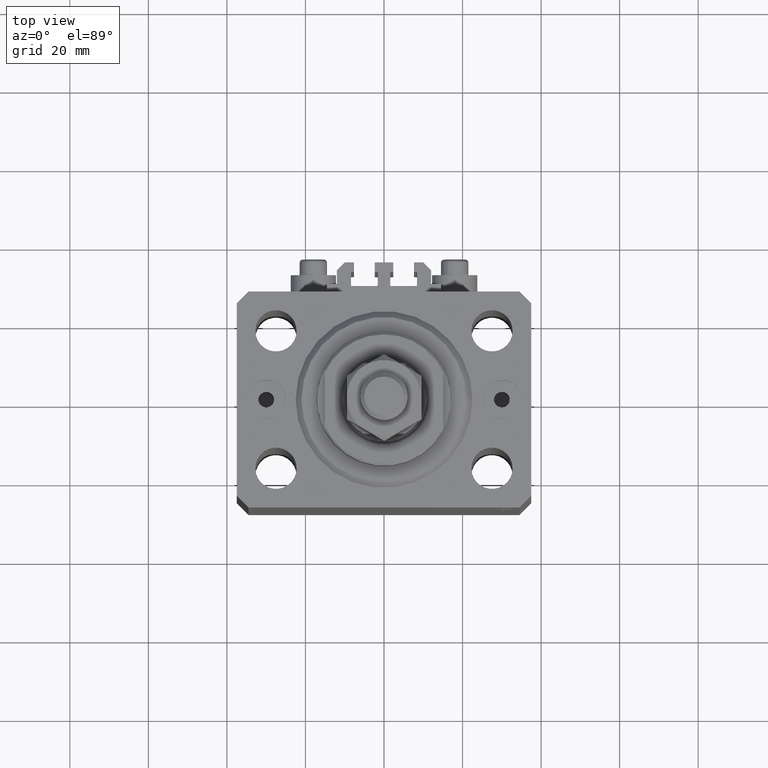
[diagram: clean part render]
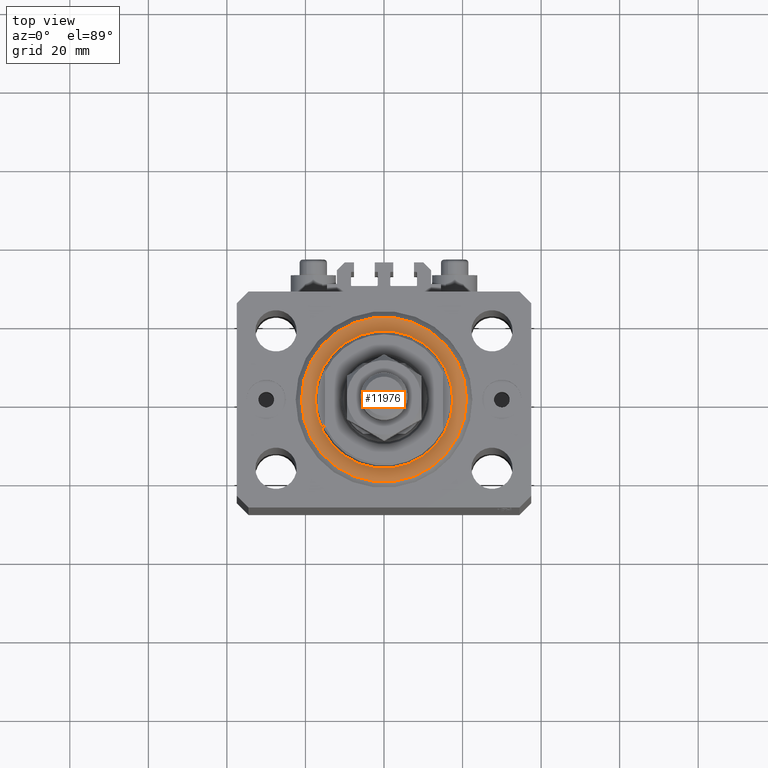
[diagram: same view with one face highlighted and labeled with its STEP entity id]
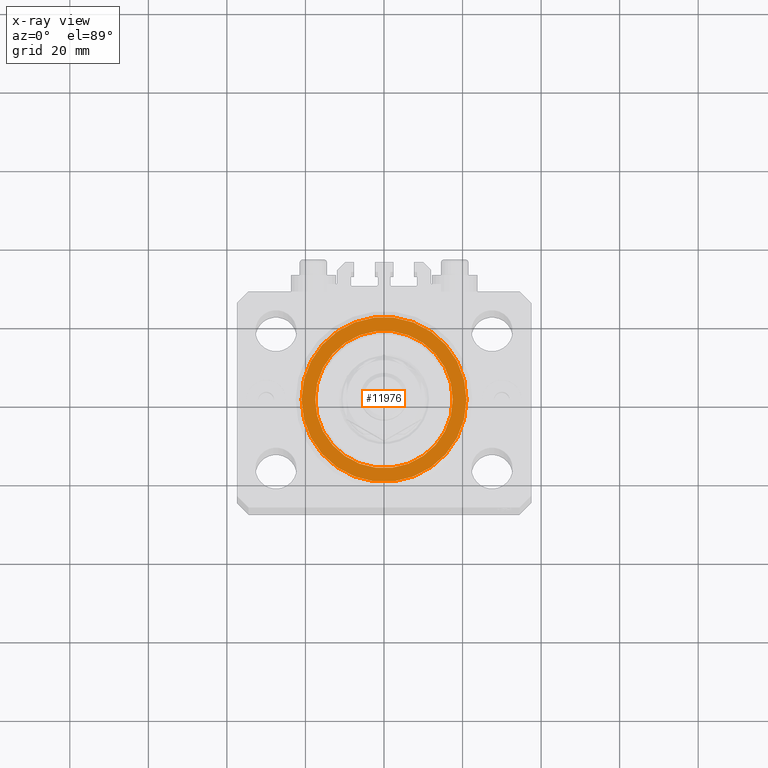
[diagram: x-ray of the same camera — body ghosted, the highlighted face saturated]
A machine part, top view. The second image highlights one B-rep face of the part: STEP entity #11976.
The next image is the same camera in x-ray: the body ghosted, the highlighted face saturated — about 0% of this face is hidden behind the body in this view.
In plain terms, the highlighted planar face has unit normal (0, 0, -1).
Its self-contained STEP definition (entity closure, byte-faithful):
#1488 = VERTEX_POINT ( 'NONE', #37479 ) ;
#2056 = VERTEX_POINT ( 'NONE', #33889 ) ;
#4463 = DIRECTION ( 'NONE',  ( 1.000000000000000000, 0.000000000000000000, 0.000000000000000000 ) ) ;
#4901 = VERTEX_POINT ( 'NONE', #7759 ) ;
#5050 = CIRCLE ( 'NONE', #7412, 20.99999999999998934 ) ;
#6357 = AXIS2_PLACEMENT_3D ( 'NONE', #33100, #14834, #48122 ) ;
#6418 = CARTESIAN_POINT ( 'NONE',  ( 0.000000000000000000, 0.000000000000000000, 0.000000000000000000 ) ) ;
#7144 = DIRECTION ( 'NONE',  ( 1.000000000000000000, 0.000000000000000000, 0.000000000000000000 ) ) ;
#7412 = AXIS2_PLACEMENT_3D ( 'NONE', #23224, #38277, #4463 ) ;
#7759 = CARTESIAN_POINT ( 'NONE',  ( -20.99999999999998934, 2.663606788145492628E-15, 0.000000000000000000 ) ) ;
#9851 = DIRECTION ( 'NONE',  ( 0.000000000000000000, 0.000000000000000000, 1.000000000000000000 ) ) ;
#11976 = ADVANCED_FACE ( 'NONE', ( #36019, #35288 ), #32326, .F. ) ;
#13312 = CARTESIAN_POINT ( 'NONE',  ( 0.000000000000000000, 0.000000000000000000, 0.000000000000000000 ) ) ;
#14834 = DIRECTION ( 'NONE',  ( -0.000000000000000000, -0.000000000000000000, -1.000000000000000000 ) ) ;
#17584 = ORIENTED_EDGE ( 'NONE', *, *, #17593, .T. ) ;
#17593 = EDGE_CURVE ( 'NONE', #1488, #4901, #22916, .T. ) ;
#19872 = EDGE_CURVE ( 'NONE', #24534, #2056, #30103, .T. ) ;
#22916 = CIRCLE ( 'NONE', #6357, 20.99999999999998934 ) ;
#23224 = CARTESIAN_POINT ( 'NONE',  ( 0.000000000000000000, 0.000000000000000000, 0.000000000000000000 ) ) ;
#23367 = AXIS2_PLACEMENT_3D ( 'NONE', #13312, #9851, #46619 ) ;
#24534 = VERTEX_POINT ( 'NONE', #29930 ) ;
#26018 = EDGE_LOOP ( 'NONE', ( #47601, #30767 ) ) ;
#29757 = CARTESIAN_POINT ( 'NONE',  ( 0.000000000000000000, 0.000000000000000000, 0.000000000000000000 ) ) ;
#29930 = CARTESIAN_POINT ( 'NONE',  ( 17.50000000000000000, 0.000000000000000000, -2.168404344971008868E-16 ) ) ;
#30103 = CIRCLE ( 'NONE', #48151, 17.50000000000000000 ) ;
#30171 = AXIS2_PLACEMENT_3D ( 'NONE', #29757, #34159, #37373 ) ;
#30767 = ORIENTED_EDGE ( 'NONE', *, *, #37329, .T. ) ;
#32326 = PLANE ( 'NONE',  #23367 ) ;
#33100 = CARTESIAN_POINT ( 'NONE',  ( 0.000000000000000000, 0.000000000000000000, 0.000000000000000000 ) ) ;
#33889 = CARTESIAN_POINT ( 'NONE',  ( -17.50000000000000000, 2.143131898507868643E-15, -2.168404344971008868E-16 ) ) ;
#34159 = DIRECTION ( 'NONE',  ( 0.000000000000000000, 0.000000000000000000, 1.000000000000000000 ) ) ;
#35288 = FACE_OUTER_BOUND ( 'NONE', #45060, .T. ) ;
#36019 = FACE_BOUND ( 'NONE', #26018, .T. ) ;
#37329 = EDGE_CURVE ( 'NONE', #2056, #24534, #47460, .T. ) ;
#37373 = DIRECTION ( 'NONE',  ( 1.000000000000000000, 0.000000000000000000, 0.000000000000000000 ) ) ;
#37479 = CARTESIAN_POINT ( 'NONE',  ( 20.99999999999998934, 0.000000000000000000, 0.000000000000000000 ) ) ;
#38277 = DIRECTION ( 'NONE',  ( -0.000000000000000000, -0.000000000000000000, -1.000000000000000000 ) ) ;
#44407 = DIRECTION ( 'NONE',  ( 0.000000000000000000, 0.000000000000000000, 1.000000000000000000 ) ) ;
#45060 = EDGE_LOOP ( 'NONE', ( #17584, #48399 ) ) ;
#45413 = EDGE_CURVE ( 'NONE', #4901, #1488, #5050, .T. ) ;
#46619 = DIRECTION ( 'NONE',  ( 1.000000000000000000, 0.000000000000000000, -0.000000000000000000 ) ) ;
#47460 = CIRCLE ( 'NONE', #30171, 17.50000000000000000 ) ;
#47601 = ORIENTED_EDGE ( 'NONE', *, *, #19872, .T. ) ;
#48122 = DIRECTION ( 'NONE',  ( 1.000000000000000000, 0.000000000000000000, 0.000000000000000000 ) ) ;
#48151 = AXIS2_PLACEMENT_3D ( 'NONE', #6418, #44407, #7144 ) ;
#48399 = ORIENTED_EDGE ( 'NONE', *, *, #45413, .T. ) ;